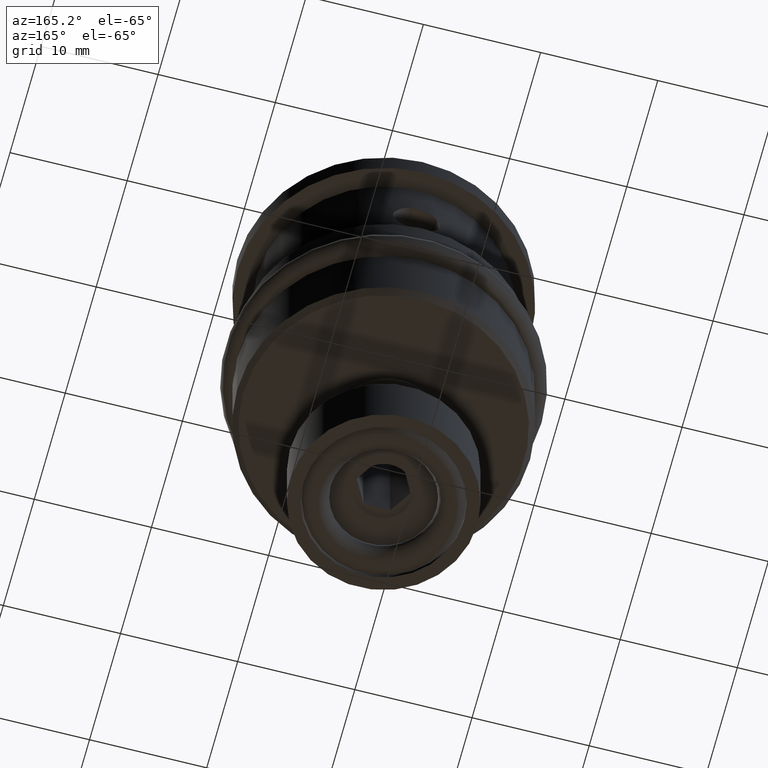
[diagram: clean part render]
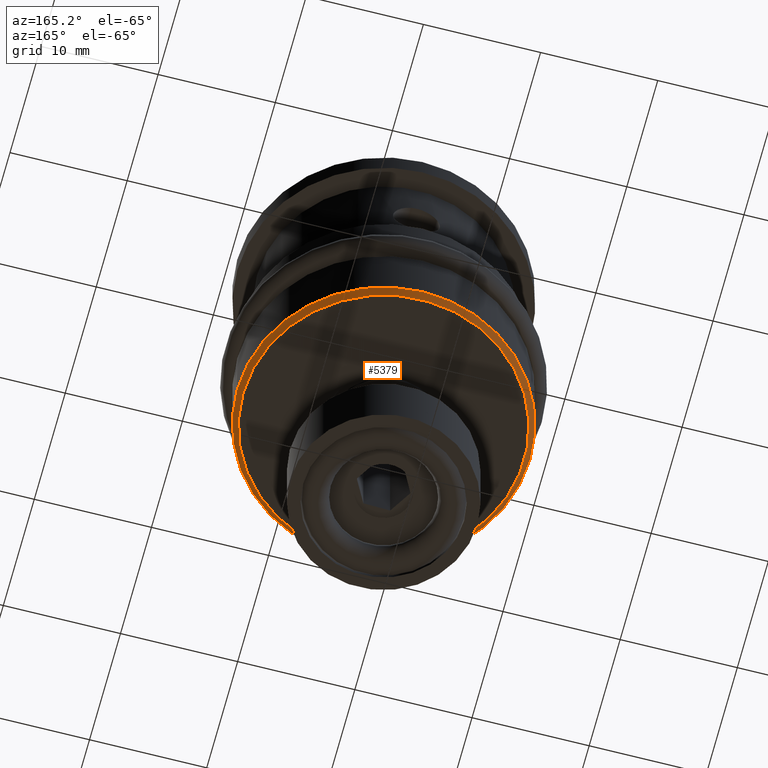
[diagram: same view with one face highlighted and labeled with its STEP entity id]
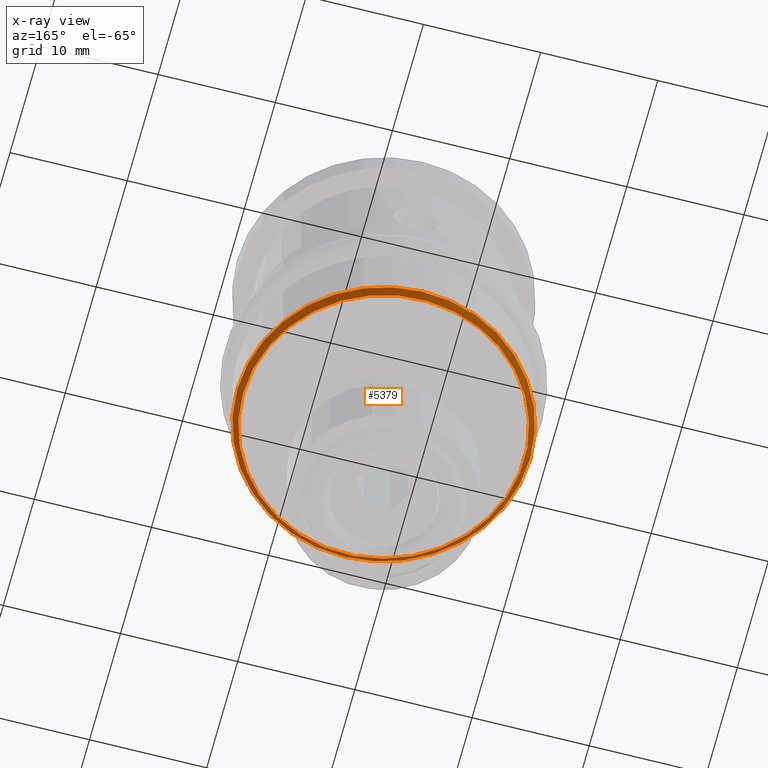
[diagram: x-ray of the same camera — body ghosted, the highlighted face saturated]
A machine part, auxiliary view. The second image highlights one B-rep face of the part: STEP entity #5379.
The next image is the same camera in x-ray: the body ghosted, the highlighted face saturated — about 12% of this face is hidden behind the body in this view.
In plain terms, the highlighted conical surface has half-angle 45 deg.
Its self-contained STEP definition (entity closure, byte-faithful):
#100 = DIRECTION ( 'NONE',  ( 1.000000000000000000, 0.0000000000000000000, 0.0000000000000000000 ) ) ;
#131 = VERTEX_POINT ( 'NONE', #1084 ) ;
#189 = DIRECTION ( 'NONE',  ( -0.0000000000000000000, -0.0000000000000000000, -1.000000000000000000 ) ) ;
#354 = FACE_BOUND ( 'NONE', #5225, .T. ) ;
#726 = CARTESIAN_POINT ( 'NONE',  ( 0.0000000000000000000, 0.0000000000000000000, 0.0000000000000000000 ) ) ;
#1084 = CARTESIAN_POINT ( 'NONE',  ( 12.50000000000000000, 0.0000000000000000000, 0.5000000000000022204 ) ) ;
#2002 = CARTESIAN_POINT ( 'NONE',  ( 0.0000000000000000000, 0.0000000000000000000, 0.5000000000000022204 ) ) ;
#2160 = VERTEX_POINT ( 'NONE', #4113 ) ;
#2362 = ORIENTED_EDGE ( 'NONE', *, *, #2569, .F. ) ;
#2371 = DIRECTION ( 'NONE',  ( -0.0000000000000000000, -0.0000000000000000000, 1.000000000000000000 ) ) ;
#2569 = EDGE_CURVE ( 'NONE', #131, #131, #4482, .T. ) ;
#2628 = DIRECTION ( 'NONE',  ( 1.000000000000000000, 0.0000000000000000000, 0.0000000000000000000 ) ) ;
#2964 = AXIS2_PLACEMENT_3D ( 'NONE', #4796, #2371, #3785 ) ;
#3450 = EDGE_CURVE ( 'NONE', #2160, #2160, #6185, .T. ) ;
#3548 = EDGE_LOOP ( 'NONE', ( #2362 ) ) ;
#3758 = CONICAL_SURFACE ( 'NONE', #5162, 12.50000000000000000, 0.7853981633974500554 ) ;
#3785 = DIRECTION ( 'NONE',  ( 1.000000000000000000, 0.0000000000000000000, 0.0000000000000000000 ) ) ;
#4113 = CARTESIAN_POINT ( 'NONE',  ( 11.99999999999999645, 0.0000000000000000000, 0.0000000000000000000 ) ) ;
#4126 = ORIENTED_EDGE ( 'NONE', *, *, #3450, .F. ) ;
#4217 = FACE_OUTER_BOUND ( 'NONE', #3548, .T. ) ;
#4482 = CIRCLE ( 'NONE', #2964, 12.50000000000000000 ) ;
#4673 = AXIS2_PLACEMENT_3D ( 'NONE', #726, #189, #2628 ) ;
#4796 = CARTESIAN_POINT ( 'NONE',  ( 0.0000000000000000000, 0.0000000000000000000, 0.5000000000000022204 ) ) ;
#5162 = AXIS2_PLACEMENT_3D ( 'NONE', #2002, #5881, #100 ) ;
#5225 = EDGE_LOOP ( 'NONE', ( #4126 ) ) ;
#5379 = ADVANCED_FACE ( 'NONE', ( #354, #4217 ), #3758, .T. ) ;
#5881 = DIRECTION ( 'NONE',  ( -0.0000000000000000000, -0.0000000000000000000, 1.000000000000000000 ) ) ;
#6185 = CIRCLE ( 'NONE', #4673, 11.99999999999999645 ) ;